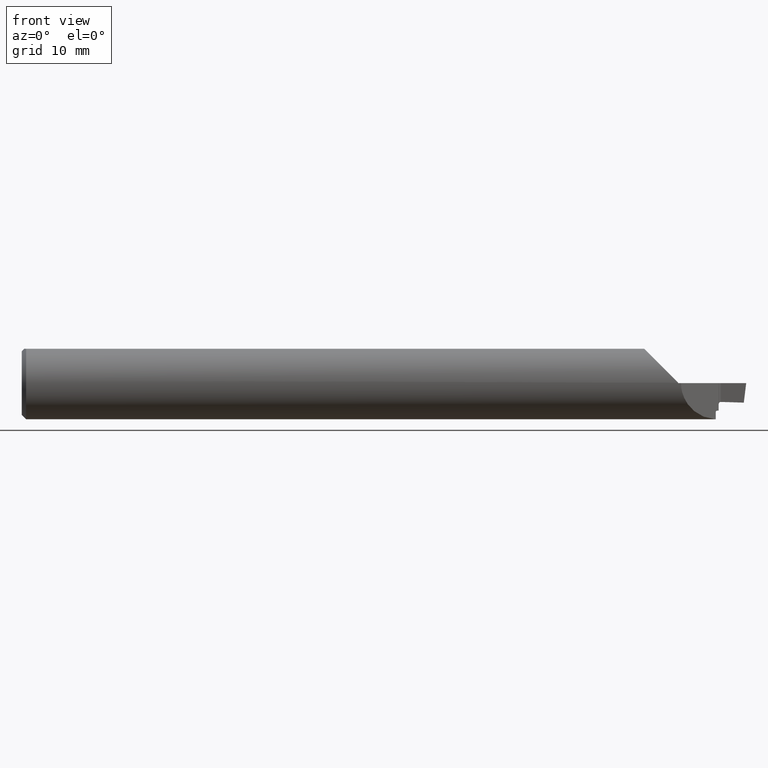
[diagram: clean part render]
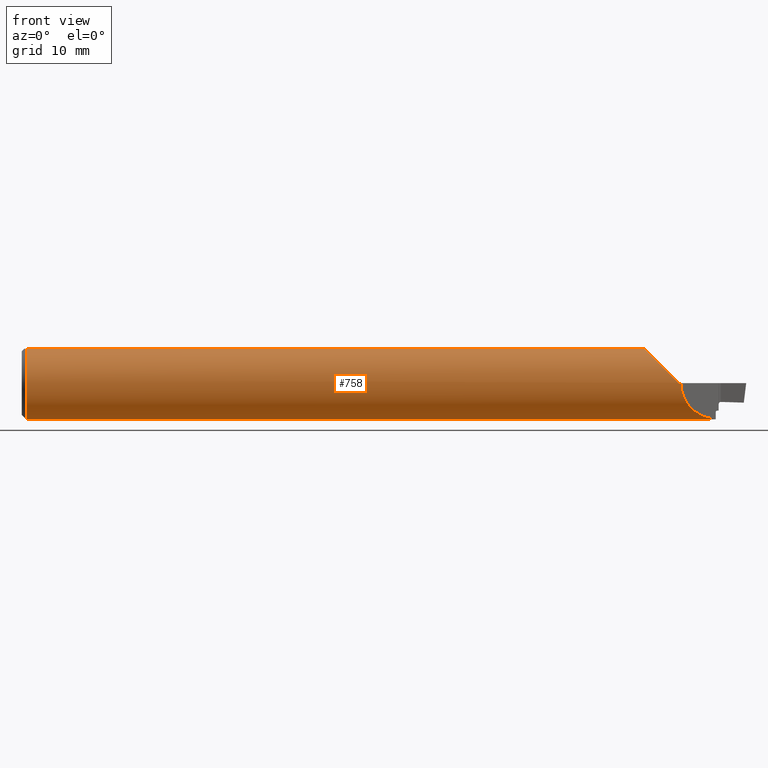
[diagram: same view with one face highlighted and labeled with its STEP entity id]
A machine part, front view. The second image highlights one B-rep face of the part: STEP entity #758.
In plain terms, the highlighted cylindrical surface (edge-blend (fillet) strip) has radius 3.1712 mm, axis along (-1, -0, -0).
Its self-contained STEP definition (entity closure, byte-faithful):
#3 = EDGE_CURVE ( 'NONE', #412, #144, #181, .T. ) ;
#6 = VECTOR ( 'NONE', #615, 39.37007874015748143 ) ;
#20 = VECTOR ( 'NONE', #282, 39.37007874015748143 ) ;
#30 = VERTEX_POINT ( 'NONE', #104 ) ;
#45 = LINE ( 'NONE', #851, #706 ) ;
#58 = CARTESIAN_POINT ( 'NONE',  ( 2.394730875153431526, -0.003894890230739353216, -0.1247892316271311808 ) ) ;
#62 = FACE_OUTER_BOUND ( 'NONE', #209, .T. ) ;
#71 = ORIENTED_EDGE ( 'NONE', *, *, #286, .T. ) ;
#82 = ORIENTED_EDGE ( 'NONE', *, *, #465, .F. ) ;
#89 = CARTESIAN_POINT ( 'NONE',  ( 1.710866796786096655, 0.02034732159406403562, -0.1232801871523465098 ) ) ;
#95 = CARTESIAN_POINT ( 'NONE',  ( 2.265000000000000124, 0.000000000000000000, 0.000000000000000000 ) ) ;
#96 = VECTOR ( 'NONE', #370, 39.37007874015748143 ) ;
#98 = CARTESIAN_POINT ( 'NONE',  ( 2.274999999999999467, -0.1248500000000000026, 0.000000000000000000 ) ) ;
#101 = EDGE_CURVE ( 'NONE', #659, #595, #45, .T. ) ;
#102 = CARTESIAN_POINT ( 'NONE',  ( 1.713488581732707239, -0.001301457453720085812, -0.1248446920006879152 ) ) ;
#104 = CARTESIAN_POINT ( 'NONE',  ( 2.148000000000000131, -0.03823872382807772669, 0.1188499999999999973 ) ) ;
#105 = CARTESIAN_POINT ( 'NONE',  ( 0.01500000000000023190, 0.03823872382807772669, 0.1188499999999999973 ) ) ;
#107 = CARTESIAN_POINT ( 'NONE',  ( 1.709999999999999964, 0.000000000000000000, 0.000000000000000000 ) ) ;
#108 = EDGE_CURVE ( 'NONE', #564, #412, #287, .T. ) ;
#118 = CARTESIAN_POINT ( 'NONE',  ( 1.715000000000000080, -0.003894890230802756925, -0.1247892316271320273 ) ) ;
#120 = EDGE_CURVE ( 'NONE', #151, #484, #787, .T. ) ;
#121 = ORIENTED_EDGE ( 'NONE', *, *, #854, .T. ) ;
#122 = CARTESIAN_POINT ( 'NONE',  ( 1.714128168530276053, -0.003067870172105852025, -0.1248125831559575294 ) ) ;
#131 =( BOUNDED_CURVE ( )  B_SPLINE_CURVE ( 3, ( #58, #201, #266, #479 ),
 .UNSPECIFIED., .F., .F. ) 
 B_SPLINE_CURVE_WITH_KNOTS ( ( 4, 4 ),
 ( 1.601997946940237894, 1.611641662765203709 ),
 .UNSPECIFIED. ) 
 CURVE ( )  GEOMETRIC_REPRESENTATION_ITEM ( )  RATIONAL_B_SPLINE_CURVE ( ( 1.000000000000000000, 0.9999922499104398899, 0.9999922499104398899, 1.000000000000000000 ) ) 
 REPRESENTATION_ITEM ( '' )  );
#133 = EDGE_CURVE ( 'NONE', #30, #151, #684, .T. ) ;
#139 = AXIS2_PLACEMENT_3D ( 'NONE', #195, #211, #414 ) ;
#143 = CARTESIAN_POINT ( 'NONE',  ( 2.265000000000000124, -0.1248362927998104277, 0.001850000000000442436 ) ) ;
#144 = VERTEX_POINT ( 'NONE', #871 ) ;
#147 = VERTEX_POINT ( 'NONE', #398 ) ;
#149 = CIRCLE ( 'NONE', #733, 0.1248500000000000026 ) ;
#151 = VERTEX_POINT ( 'NONE', #812 ) ;
#155 = ORIENTED_EDGE ( 'NONE', *, *, #508, .T. ) ;
#156 = CARTESIAN_POINT ( 'NONE',  ( 1.709999999999954223, 0.04425422002747203543, -0.1171691146422145641 ) ) ;
#162 = CARTESIAN_POINT ( 'NONE',  ( 1.711914333455624160, 0.007945130463938975679, -0.1246218459314067800 ) ) ;
#172 = CARTESIAN_POINT ( 'NONE',  ( 0.01500000000000023190, 0.000000000000000000, 0.000000000000000000 ) ) ;
#181 = LINE ( 'NONE', #656, #96 ) ;
#186 = ORIENTED_EDGE ( 'NONE', *, *, #339, .T. ) ;
#195 = CARTESIAN_POINT ( 'NONE',  ( 0.000000000000000000, 0.000000000000000000, 0.000000000000000000 ) ) ;
#201 = CARTESIAN_POINT ( 'NONE',  ( 2.394737877174477614, -0.004296035747810398805, -0.1247767111737649315 ) ) ;
#209 = EDGE_LOOP ( 'NONE', ( #155, #186, #756, #396, #305, #82, #121, #614, #537, #71, #600, #300, #635 ) ) ;
#211 = DIRECTION ( 'NONE',  ( -1.000000000000000000, -0.000000000000000000, -0.000000000000000000 ) ) ;
#230 = CARTESIAN_POINT ( 'NONE',  ( 1.709999999999999964, 0.05327609239522881901, -0.1129122689484851477 ) ) ;
#232 = DIRECTION ( 'NONE',  ( 1.000000000000000000, 0.000000000000000000, 0.000000000000000000 ) ) ;
#239 = CARTESIAN_POINT ( 'NONE',  ( 2.394751877648227723, -0.005098122351772174828, -0.1247458682621847836 ) ) ;
#266 = CARTESIAN_POINT ( 'NONE',  ( 2.394744878060333981, -0.004697116229897637697, -0.1247622566067576738 ) ) ;
#271 = AXIS2_PLACEMENT_3D ( 'NONE', #172, #232, #312 ) ;
#282 = DIRECTION ( 'NONE',  ( 1.000000000000000000, 1.113524997417498594E-16, -0.000000000000000000 ) ) ;
#286 = EDGE_CURVE ( 'NONE', #484, #659, #650, .T. ) ;
#287 =( BOUNDED_CURVE ( )  B_SPLINE_CURVE ( 3, ( #239, #441, #525, #98 ),
 .UNSPECIFIED., .F., .F. ) 
 B_SPLINE_CURVE_WITH_KNOTS ( ( 4, 4 ),
 ( 4.753234316354996380, 6.283185307179586232 ),
 .UNSPECIFIED. ) 
 CURVE ( )  GEOMETRIC_REPRESENTATION_ITEM ( )  RATIONAL_B_SPLINE_CURVE ( ( 1.000000000000000000, 0.8142662183690925204, 0.8142662183690925204, 1.000000000000000000 ) ) 
 REPRESENTATION_ITEM ( '' )  );
#294 = CARTESIAN_POINT ( 'NONE',  ( 1.711178079990818279, 0.01539321907340735103, -0.1239975791389464205 ) ) ;
#300 = ORIENTED_EDGE ( 'NONE', *, *, #845, .T. ) ;
#305 = ORIENTED_EDGE ( 'NONE', *, *, #3, .T. ) ;
#312 = DIRECTION ( 'NONE',  ( 0.000000000000000000, 0.000000000000000000, -1.000000000000000000 ) ) ;
#328 = CARTESIAN_POINT ( 'NONE',  ( 1.710170960735225121, 0.03823872382821605354, 0.1188499999999555051 ) ) ;
#331 = CARTESIAN_POINT ( 'NONE',  ( 1.714459317357118318, -0.003597743371579664642, -0.1247984334200071821 ) ) ;
#338 = CYLINDRICAL_SURFACE ( 'NONE', #139, 0.1248500000000000026 ) ;
#339 = EDGE_CURVE ( 'NONE', #864, #404, #697, .T. ) ;
#349 = CARTESIAN_POINT ( 'NONE',  ( 0.01500000000000023190, 0.000000000000000000, 0.000000000000000000 ) ) ;
#370 = DIRECTION ( 'NONE',  ( -1.000000000000000000, -0.000000000000000000, -0.000000000000000000 ) ) ;
#380 = CARTESIAN_POINT ( 'NONE',  ( 2.274999999999999467, -0.1248500000000000026, 0.000000000000000000 ) ) ;
#396 = ORIENTED_EDGE ( 'NONE', *, *, #108, .T. ) ;
#398 = CARTESIAN_POINT ( 'NONE',  ( 2.265000000000000124, -0.1248362927998104277, 0.001850000000000442436 ) ) ;
#402 = CARTESIAN_POINT ( 'NONE',  ( 1.709999999999999964, 0.04842420652407892351, 0.1152015641895578202 ) ) ;
#403 = CARTESIAN_POINT ( 'NONE',  ( 0.000000000000000000, -0.03823872382807772669, 0.1188499999999999973 ) ) ;
#404 = VERTEX_POINT ( 'NONE', #654 ) ;
#412 = VERTEX_POINT ( 'NONE', #380 ) ;
#414 = DIRECTION ( 'NONE',  ( 0.000000000000000000, 0.000000000000000000, 1.000000000000000000 ) ) ;
#417 = VERTEX_POINT ( 'NONE', #861 ) ;
#426 = AXIS2_PLACEMENT_3D ( 'NONE', #95, #454, #727 ) ;
#434 = DIRECTION ( 'NONE',  ( -1.000000000000000000, -1.113524997417498594E-16, 0.000000000000000000 ) ) ;
#440 = CARTESIAN_POINT ( 'NONE',  ( 1.712200838743483944, 0.005458513102771282710, -0.1247550989284079009 ) ) ;
#441 = CARTESIAN_POINT ( 'NONE',  ( 2.324022410176072473, -0.07582758982392719116, -0.1218552917318994899 ) ) ;
#454 = DIRECTION ( 'NONE',  ( 1.000000000000000000, 0.000000000000000000, -0.000000000000000000 ) ) ;
#465 = EDGE_CURVE ( 'NONE', #147, #144, #810, .T. ) ;
#468 = EDGE_CURVE ( 'NONE', #417, #604, #149, .T. ) ;
#475 = CARTESIAN_POINT ( 'NONE',  ( 2.148000000000000131, -0.03823872382807772669, 0.1188499999999999973 ) ) ;
#479 = CARTESIAN_POINT ( 'NONE',  ( 2.394751877648227723, -0.005098122351772174828, -0.1247458682621847836 ) ) ;
#484 = VERTEX_POINT ( 'NONE', #641 ) ;
#489 = CARTESIAN_POINT ( 'NONE',  ( 1.710051374558060777, 0.04338063434112023053, 0.1171956449637627240 ) ) ;
#500 = B_SPLINE_CURVE_WITH_KNOTS ( 'NONE', 3,
 ( #230, #156, #518, #89, #294, #162, #440, #584, #723, #102, #592, #544, #122, #331, #542, #118 ),
 .UNSPECIFIED., .F., .F.,
 ( 4, 2, 2, 2, 2, 2, 2, 4 ),
 ( 0.002227140341837863854, 0.003001118262295041691, 0.003388107222523631043, 0.003581601702637925936, 0.003678348942695073599, 0.003726722562723644612, 0.003750909372737930118, 0.003775096182752215625 ),
 .UNSPECIFIED. ) ;
#508 = EDGE_CURVE ( 'NONE', #604, #864, #500, .T. ) ;
#518 = CARTESIAN_POINT ( 'NONE',  ( 1.710159383103248887, 0.03488974151478062974, -0.1202838750560986797 ) ) ;
#525 = CARTESIAN_POINT ( 'NONE',  ( 2.274999999999999467, -0.1248500000000000026, -0.07078850896559471528 ) ) ;
#537 = ORIENTED_EDGE ( 'NONE', *, *, #120, .T. ) ;
#542 = CARTESIAN_POINT ( 'NONE',  ( 1.714682184764741990, -0.003894890230885138076, -0.1247892316271487362 ) ) ;
#544 = CARTESIAN_POINT ( 'NONE',  ( 1.714001066425368425, -0.002780069005519614309, -0.1248193845498107718 ) ) ;
#556 = DIRECTION ( 'NONE',  ( 1.000000000000000000, 0.000000000000000000, 0.000000000000000000 ) ) ;
#561 = CARTESIAN_POINT ( 'NONE',  ( 2.055000000000000160, -0.003894890230801667085, -0.1247892316271320134 ) ) ;
#564 = VERTEX_POINT ( 'NONE', #801 ) ;
#584 = CARTESIAN_POINT ( 'NONE',  ( 1.712802800785913959, 0.001752548865571412111, -0.1248438142879184642 ) ) ;
#592 = CARTESIAN_POINT ( 'NONE',  ( 1.713659596382578476, -0.001905378462870023016, -0.1248368223129266708 ) ) ;
#595 = VERTEX_POINT ( 'NONE', #328 ) ;
#600 = ORIENTED_EDGE ( 'NONE', *, *, #101, .T. ) ;
#604 = VERTEX_POINT ( 'NONE', #875 ) ;
#607 = AXIS2_PLACEMENT_3D ( 'NONE', #349, #556, #891 ) ;
#614 = ORIENTED_EDGE ( 'NONE', *, *, #133, .T. ) ;
#615 = DIRECTION ( 'NONE',  ( -1.000000000000000000, -0.000000000000000000, -0.000000000000000000 ) ) ;
#624 = CARTESIAN_POINT ( 'NONE',  ( 1.709999999999999964, 0.05327609239522881901, 0.1129122689484851477 ) ) ;
#635 = ORIENTED_EDGE ( 'NONE', *, *, #468, .T. ) ;
#641 = CARTESIAN_POINT ( 'NONE',  ( 0.01500000000000023190, 0.000000000000000000, -0.1248500000000000026 ) ) ;
#650 = CIRCLE ( 'NONE', #607, 0.1248500000000000026 ) ;
#654 = CARTESIAN_POINT ( 'NONE',  ( 2.394730875153431526, -0.003894890230739353216, -0.1247892316271311808 ) ) ;
#656 = CARTESIAN_POINT ( 'NONE',  ( 0.000000000000000000, -0.1248500000000000026, 0.000000000000000000 ) ) ;
#659 = VERTEX_POINT ( 'NONE', #105 ) ;
#662 = DIRECTION ( 'NONE',  ( 1.000000000000000000, 0.000000000000000000, 0.000000000000000000 ) ) ;
#684 = LINE ( 'NONE', #403, #6 ) ;
#694 = CARTESIAN_POINT ( 'NONE',  ( 2.164983538797464746, -0.09102535957339832895, 0.1018664612025355354 ) ) ;
#697 = LINE ( 'NONE', #561, #20 ) ;
#706 = VECTOR ( 'NONE', #662, 39.37007874015748143 ) ;
#723 = CARTESIAN_POINT ( 'NONE',  ( 1.713029506829477633, 0.0005194235571591890961, -0.1248548210850110585 ) ) ;
#727 = DIRECTION ( 'NONE',  ( 0.000000000000000000, 0.000000000000000000, -1.000000000000000000 ) ) ;
#733 = AXIS2_PLACEMENT_3D ( 'NONE', #107, #434, #775 ) ;
#751 = CARTESIAN_POINT ( 'NONE',  ( 1.715000000000000080, -0.003894890230802756925, -0.1247892316271320273 ) ) ;
#756 = ORIENTED_EDGE ( 'NONE', *, *, #781, .T. ) ;
#758 = ADVANCED_FACE ( 'NONE', ( #62 ), #338, .T. ) ;
#775 = DIRECTION ( 'NONE',  ( 0.000000000000000000, -1.000000000000000000, 0.000000000000000000 ) ) ;
#781 = EDGE_CURVE ( 'NONE', #404, #564, #131, .T. ) ;
#787 = CIRCLE ( 'NONE', #271, 0.1248500000000000026 ) ;
#801 = CARTESIAN_POINT ( 'NONE',  ( 2.394751877648227723, -0.005098122351772174828, -0.1247458682621847836 ) ) ;
#808 = CARTESIAN_POINT ( 'NONE',  ( 2.209554582113422150, -0.1240146245109684658, 0.05729541788657826346 ) ) ;
#810 = CIRCLE ( 'NONE', #426, 0.1248500000000000026 ) ;
#812 = CARTESIAN_POINT ( 'NONE',  ( 0.01499999999997804305, -0.03823872382811423221, 0.1188499999999999973 ) ) ;
#828 = CARTESIAN_POINT ( 'NONE',  ( 1.710170960735225121, 0.03823872382821605354, 0.1188499999999555051 ) ) ;
#845 = EDGE_CURVE ( 'NONE', #595, #417, #878, .T. ) ;
#851 = CARTESIAN_POINT ( 'NONE',  ( 0.000000000000000000, 0.03823872382807772669, 0.1188499999999999973 ) ) ;
#854 = EDGE_CURVE ( 'NONE', #147, #30, #890, .T. ) ;
#861 = CARTESIAN_POINT ( 'NONE',  ( 1.709999999999999964, 0.05327609239522881901, 0.1129122689484851477 ) ) ;
#864 = VERTEX_POINT ( 'NONE', #751 ) ;
#871 = CARTESIAN_POINT ( 'NONE',  ( 2.265000000000000124, -0.1248500000000000026, 0.000000000000000000 ) ) ;
#875 = CARTESIAN_POINT ( 'NONE',  ( 1.709999999999999964, 0.05327609239522881901, -0.1129122689484851477 ) ) ;
#878 = B_SPLINE_CURVE_WITH_KNOTS ( 'NONE', 3,
 ( #828, #489, #402, #624 ),
 .UNSPECIFIED., .F., .F.,
 ( 4, 4 ),
 ( 6.528325437629129570E-07, 0.0004120090794528270405 ),
 .UNSPECIFIED. ) ;
#890 =( BOUNDED_CURVE ( )  B_SPLINE_CURVE ( 3, ( #143, #808, #694, #475 ),
 .UNSPECIFIED., .F., .T. ) 
 B_SPLINE_CURVE_WITH_KNOTS ( ( 4, 4 ),
 ( 4.727207304024301671, 5.971905359455142559 ),
 .UNSPECIFIED. ) 
 CURVE ( )  GEOMETRIC_REPRESENTATION_ITEM ( )  RATIONAL_B_SPLINE_CURVE ( ( 1.000000000000000000, 0.8750075631735800830, 0.8750075631735800830, 1.000000000000000000 ) ) 
 REPRESENTATION_ITEM ( '' )  );
#891 = DIRECTION ( 'NONE',  ( 0.000000000000000000, 0.000000000000000000, -1.000000000000000000 ) ) ;